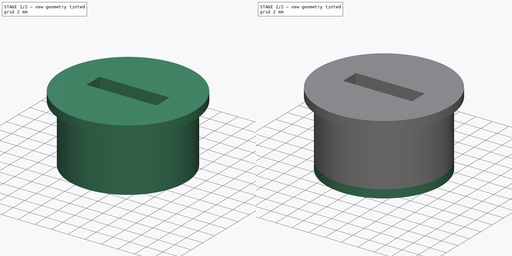
[diagram: build sequence overview — one tinted view per stage of 2, left to right]
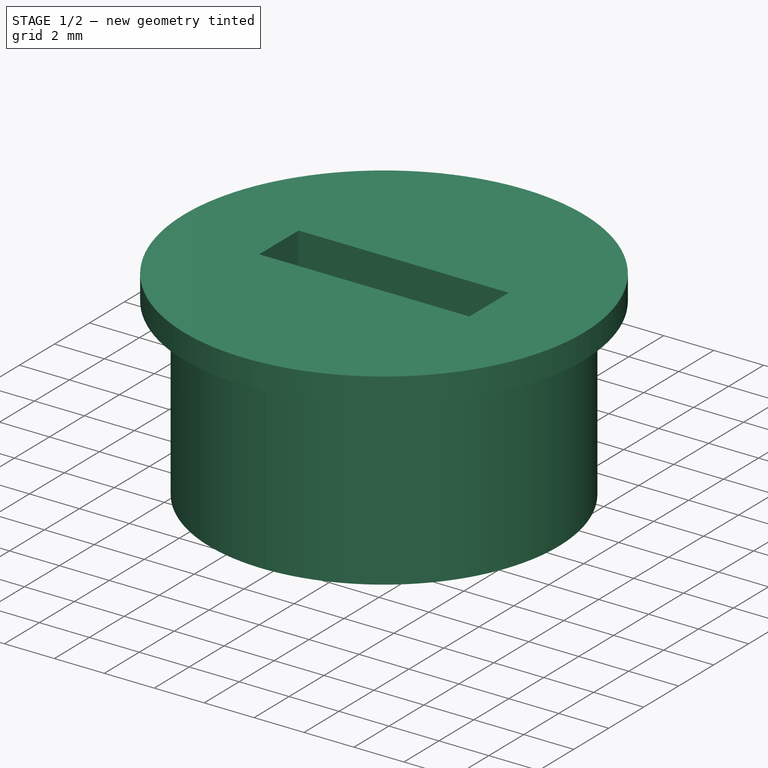
[diagram: stage 1 of 2 — iso view after this stage's code; geometry added in this stage tinted green]
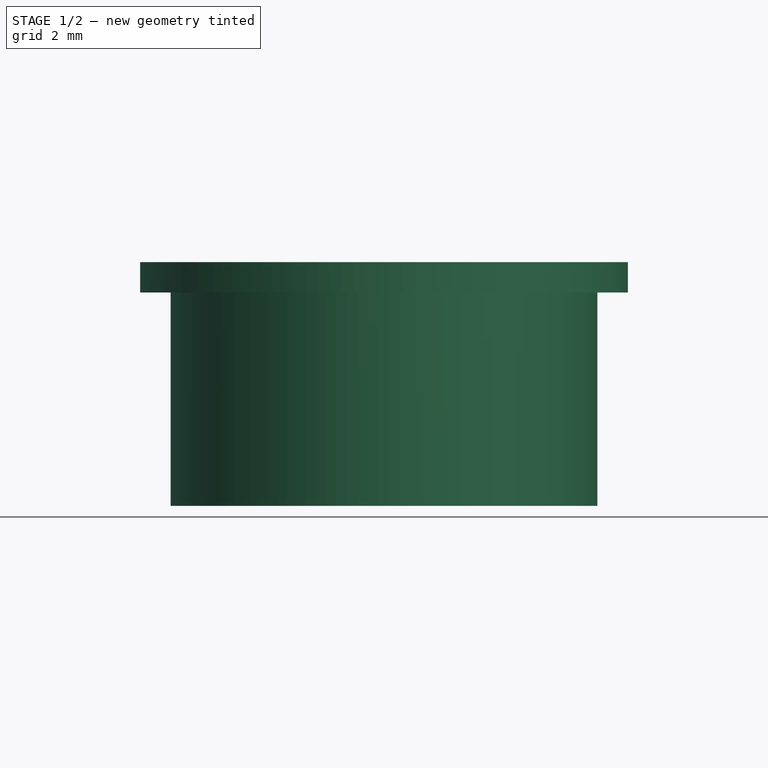
[diagram: stage 1 of 2 — front view after this stage's code; geometry added in this stage tinted green]
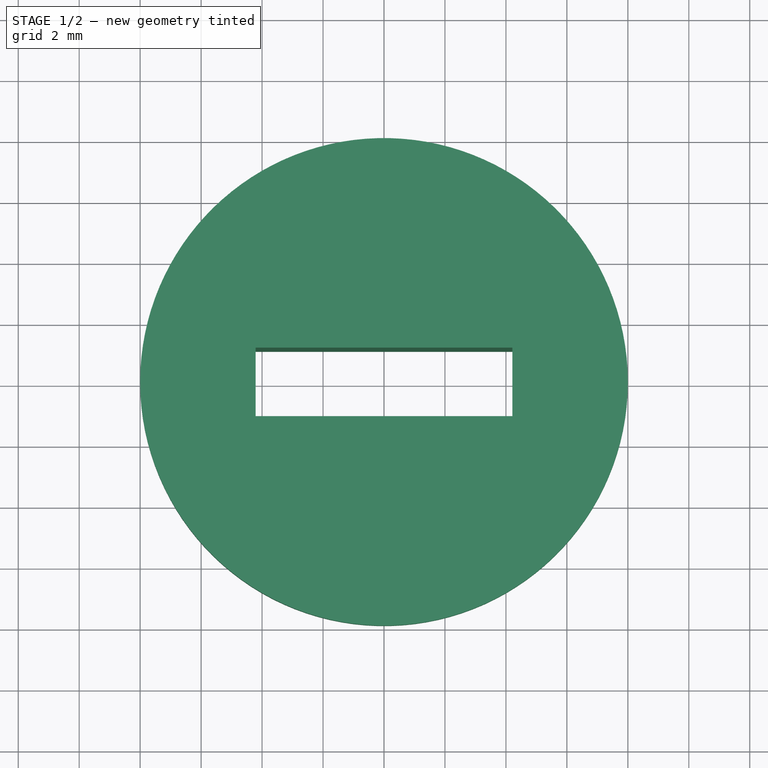
[diagram: stage 1 of 2 — top view after this stage's code; geometry added in this stage tinted green]
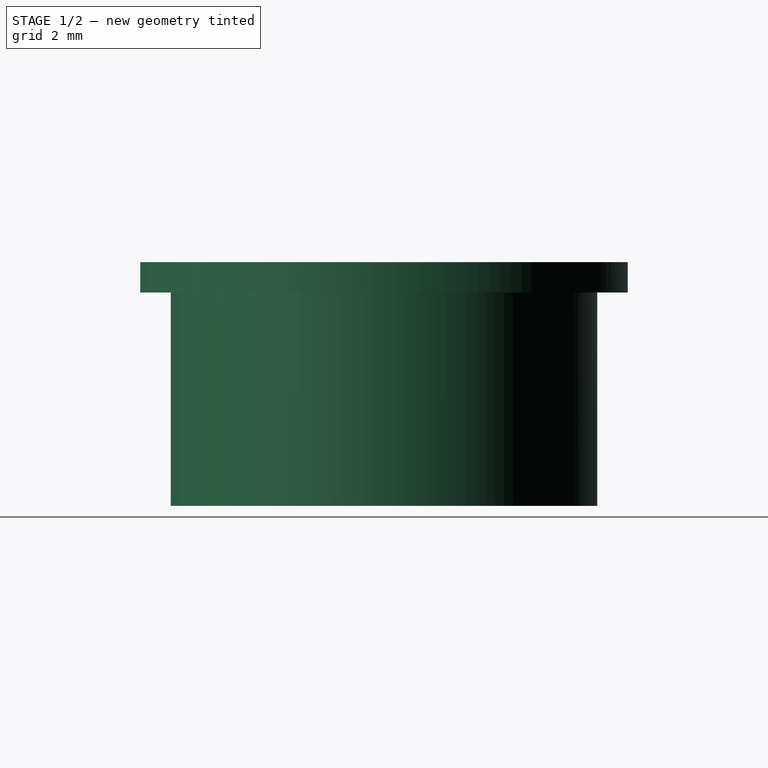
[diagram: stage 1 of 2 — right view after this stage's code; geometry added in this stage tinted green]
FCSTD DOCUMENT  (FreeCAD 0.19R24291 (Git))
Label: Tirette_Embase
License: All rights reserved
LicenseURL: http://en.wikipedia.org/wiki/All_rights_reserved
objects: Sketcher::SketchObject×3, PartDesign::Pad×3, PartDesign::Body×1
note: 10 computed .brp shape members not serialized (recipe doc carries the construction recipe); baked Part::Feature solids carry a one-line shape summary decoded from their .brp

FEATURE [Sketcher::SketchObject] Sketch
  FullyConstrained = true
  MapMode = 5
  Support = -> [XY_Plane]
  sketch-geometry (7):
    g0: Circle CenterX=0 CenterY=0 CenterZ=0 NormalX=0 NormalY=0 NormalZ=1 AngleXU=0 Radius=8
    g1: LineSegment StartX=-4.21 StartY=-1.125 StartZ=0 EndX=4.21 EndY=-1.125 EndZ=0
    g2: LineSegment StartX=4.21 StartY=-1.125 StartZ=0 EndX=4.21 EndY=1.125 EndZ=0
    g3: LineSegment StartX=4.21 StartY=1.125 StartZ=0 EndX=-4.21 EndY=1.125 EndZ=0
    g4: LineSegment StartX=-4.21 StartY=1.125 StartZ=0 EndX=-4.21 EndY=-1.125 EndZ=0
    g5: LineSegment StartX=-4.21 StartY=-1.125 StartZ=0 EndX=4.21 EndY=1.125 EndZ=0
    g6: LineSegment StartX=-4.21 StartY=1.125 StartZ=0 EndX=4.21 EndY=-1.125 EndZ=0
  constraints (18):
    c: Coincident(g0,g-1)
    c: Radius(g0) = 8
    c: Coincident(g1,g2)
    c: Coincident(g2,g3)
    c: Coincident(g3,g4)
    c: Coincident(g4,g1)
    c: Horizontal(g1)
    c: Horizontal(g3)
    c: Vertical(g2)
    c: Vertical(g4)
    c: Coincident(g5,g1)
    c: Coincident(g5,g2)
    c: Coincident(g6,g3)
    c: Coincident(g6,g1)
    c: PointOnObject(g0,g6)
    c: PointOnObject(g0,g5)
    c: DistanceX(g1,g1) = 8.42
    c: DistanceY(g2,g2) = 2.25
FEATURE [PartDesign::Pad] Pad  label="Base"
  Direction = (1,1,1)
  Length = 1
  Length2 = 100
  Profile = -> Sketch
  Type = 0
FEATURE [Sketcher::SketchObject] Sketch001
  ExternalGeometry = -> [Pad]
  FullyConstrained = true
  MapMode = 5
  Placement = pos=(0,0,0) rot=(1,0,0;3.14159rad)
  Support = -> [Pad]
  sketch-geometry (5):
    g0: Circle CenterX=0 CenterY=0 CenterZ=0 NormalX=0 NormalY=0 NormalZ=1 AngleXU=0 Radius=7
    g1: LineSegment StartX=-4.21 StartY=1.125 StartZ=0 EndX=4.21 EndY=1.125 EndZ=0
    g2: LineSegment StartX=4.21 StartY=1.125 StartZ=0 EndX=4.21 EndY=-1.125 EndZ=0
    g3: LineSegment StartX=4.21 StartY=-1.125 StartZ=0 EndX=-4.21 EndY=-1.125 EndZ=0
    g4: LineSegment StartX=-4.21 StartY=-1.125 StartZ=0 EndX=-4.21 EndY=1.125 EndZ=0
  constraints (12):
    c: Radius(g0) = 7
    c: Coincident(g1,g2)
    c: Coincident(g2,g3)
    c: Coincident(g3,g4)
    c: Coincident(g4,g1)
    c: Horizontal(g1)
    c: Horizontal(g3)
    c: Vertical(g2)
    c: Vertical(g4)
    c: Coincident(g1,g-4)
    c: Coincident(g2,g-6)
    c: Coincident(g0,g-1)
FEATURE [PartDesign::Pad] Pad001  label="Logement-Header"
  BaseFeature = -> Pad
  Direction = (1,1,1)
  Length = 7
  Length2 = 100
  Profile = -> Sketch001
  Type = 0
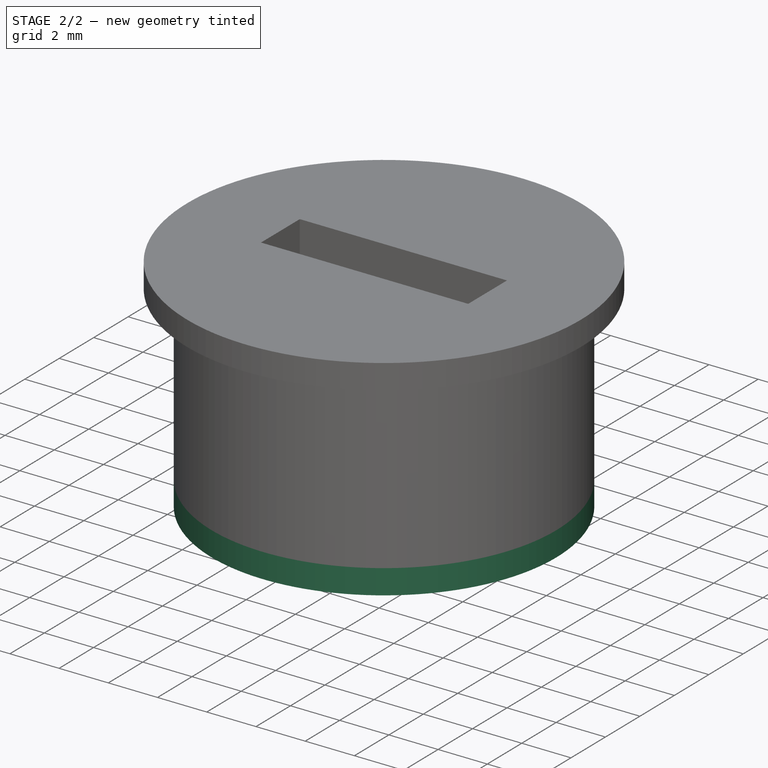
[diagram: stage 2 of 2 — iso view after this stage's code; geometry added in this stage tinted green]
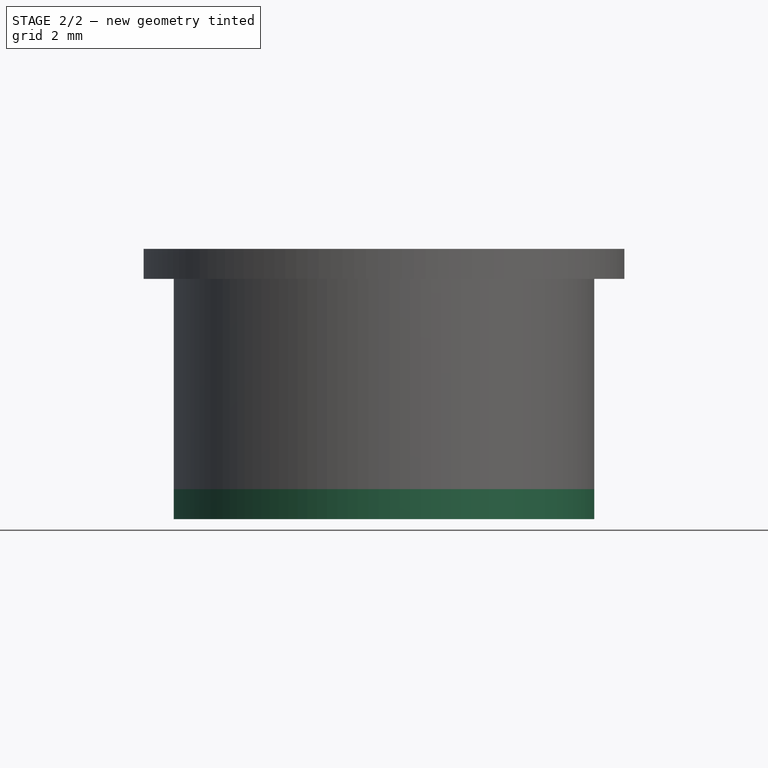
[diagram: stage 2 of 2 — front view after this stage's code; geometry added in this stage tinted green]
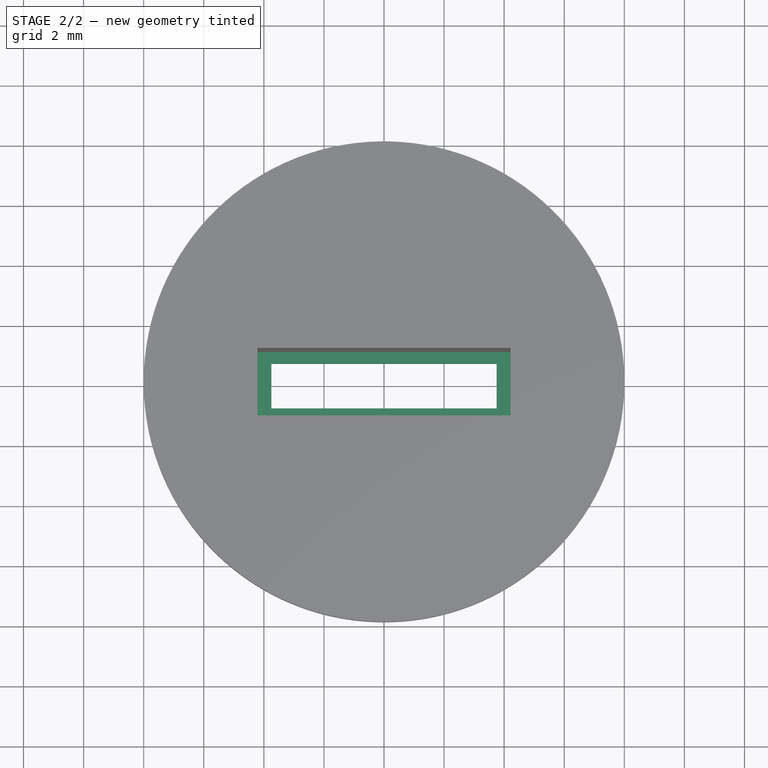
[diagram: stage 2 of 2 — top view after this stage's code; geometry added in this stage tinted green]
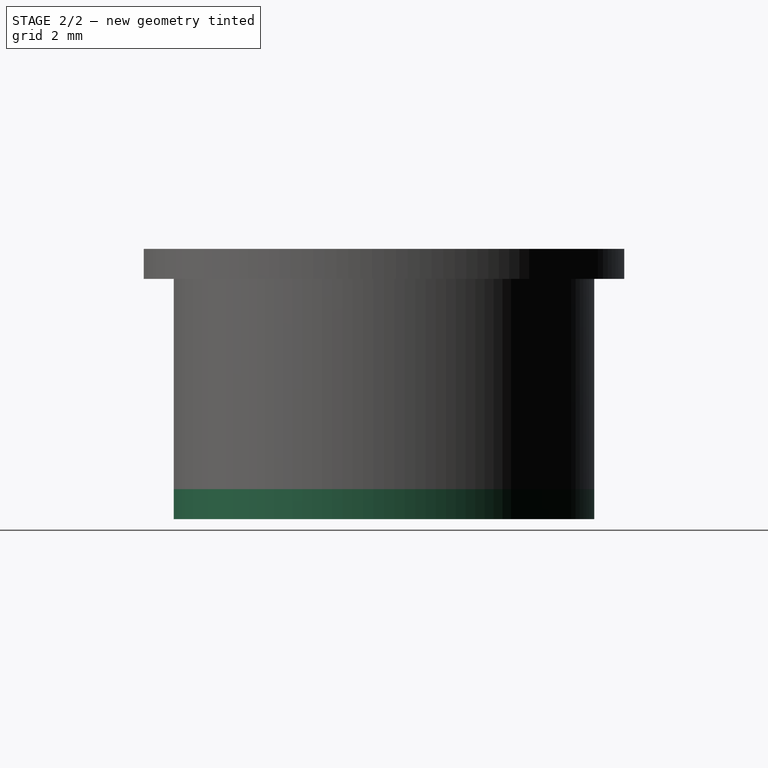
[diagram: stage 2 of 2 — right view after this stage's code; geometry added in this stage tinted green]
FEATURE [Sketcher::SketchObject] Sketch002
  ExternalGeometry = -> [Pad001]
  FullyConstrained = true
  MapMode = 5
  Placement = pos=(0,0,-7) rot=(1,0,0;3.14159rad)
  Support = -> [Pad001]
  sketch-geometry (7):
    g0: LineSegment StartX=-3.75 StartY=0.75 StartZ=0 EndX=3.75 EndY=0.75 EndZ=0
    g1: LineSegment StartX=3.75 StartY=0.75 StartZ=0 EndX=3.75 EndY=-0.75 EndZ=0
    g2: LineSegment StartX=3.75 StartY=-0.75 StartZ=0 EndX=-3.75 EndY=-0.75 EndZ=0
    g3: LineSegment StartX=-3.75 StartY=-0.75 StartZ=0 EndX=-3.75 EndY=0.75 EndZ=0
    g4: LineSegment StartX=-3.75 StartY=-0.75 StartZ=0 EndX=3.75 EndY=0.75 EndZ=0
    g5: LineSegment StartX=-3.75 StartY=0.75 StartZ=0 EndX=3.75 EndY=-0.75 EndZ=0
    g6: Circle CenterX=0 CenterY=0 CenterZ=0 NormalX=0 NormalY=0 NormalZ=1 AngleXU=0 Radius=7
  constraints (18):
    c: Coincident(g0,g1)
    c: Coincident(g1,g2)
    c: Coincident(g2,g3)
    c: Coincident(g3,g0)
    c: Horizontal(g0)
    c: Horizontal(g2)
    c: Vertical(g1)
    c: Vertical(g3)
    c: Coincident(g4,g2)
    c: Coincident(g4,g0)
    c: Coincident(g5,g0)
    c: Coincident(g5,g1)
    c: PointOnObject(g-1,g4)
    c: DistanceY(g2,g0) = 1.5
    c: Coincident(g6,g-1)
    c: Equal(g6,g-3)
    c: PointOnObject(g6,g5)
    c: DistanceX(g0,g0) = 7.5
FEATURE [PartDesign::Pad] Pad002  label="Logement-Header-2"
  BaseFeature = -> Pad001
  Direction = (1,1,1)
  Length = 1
  Length2 = 100
  Profile = -> Sketch002
  Type = 0
FEATURE [PartDesign::Body] Body
  Group = -> [Sketch,Pad,Sketch001,Pad001,Sketch002,Pad002]
  Origin = -> Origin
  Tip = -> Pad002
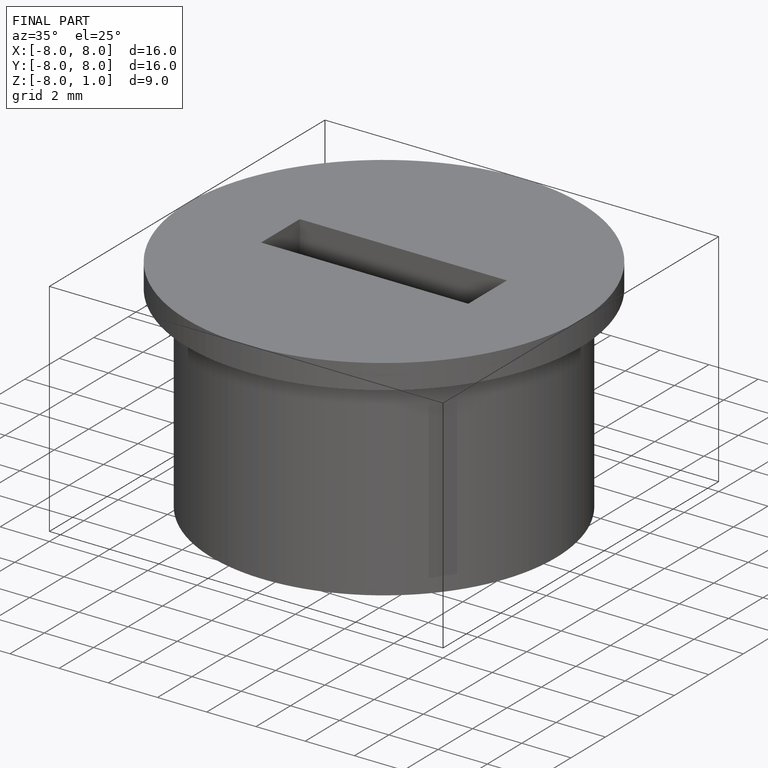
[diagram: finished part — iso view with bounding-box wireframe]
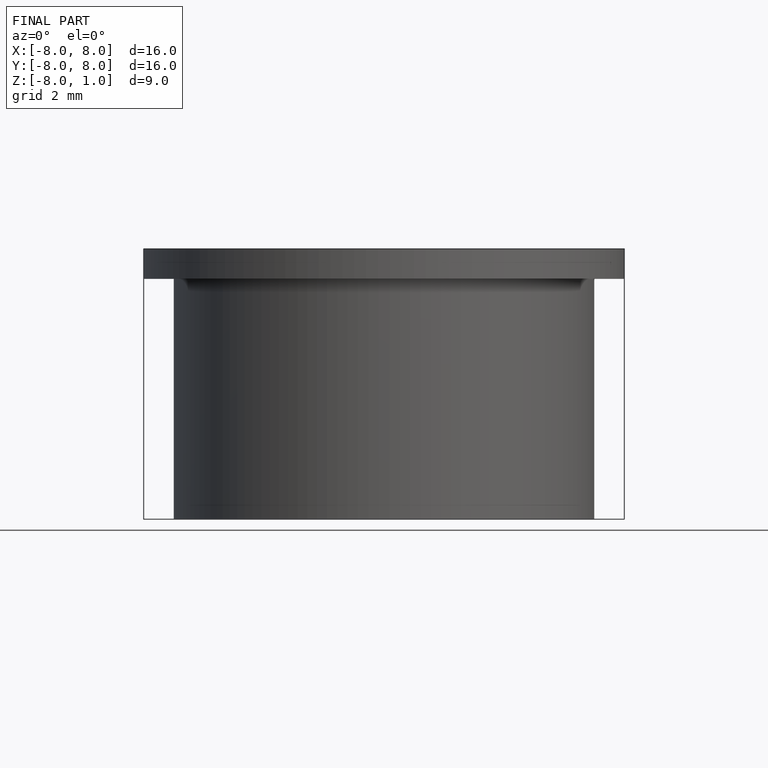
[diagram: finished part — front view with bounding-box wireframe]
